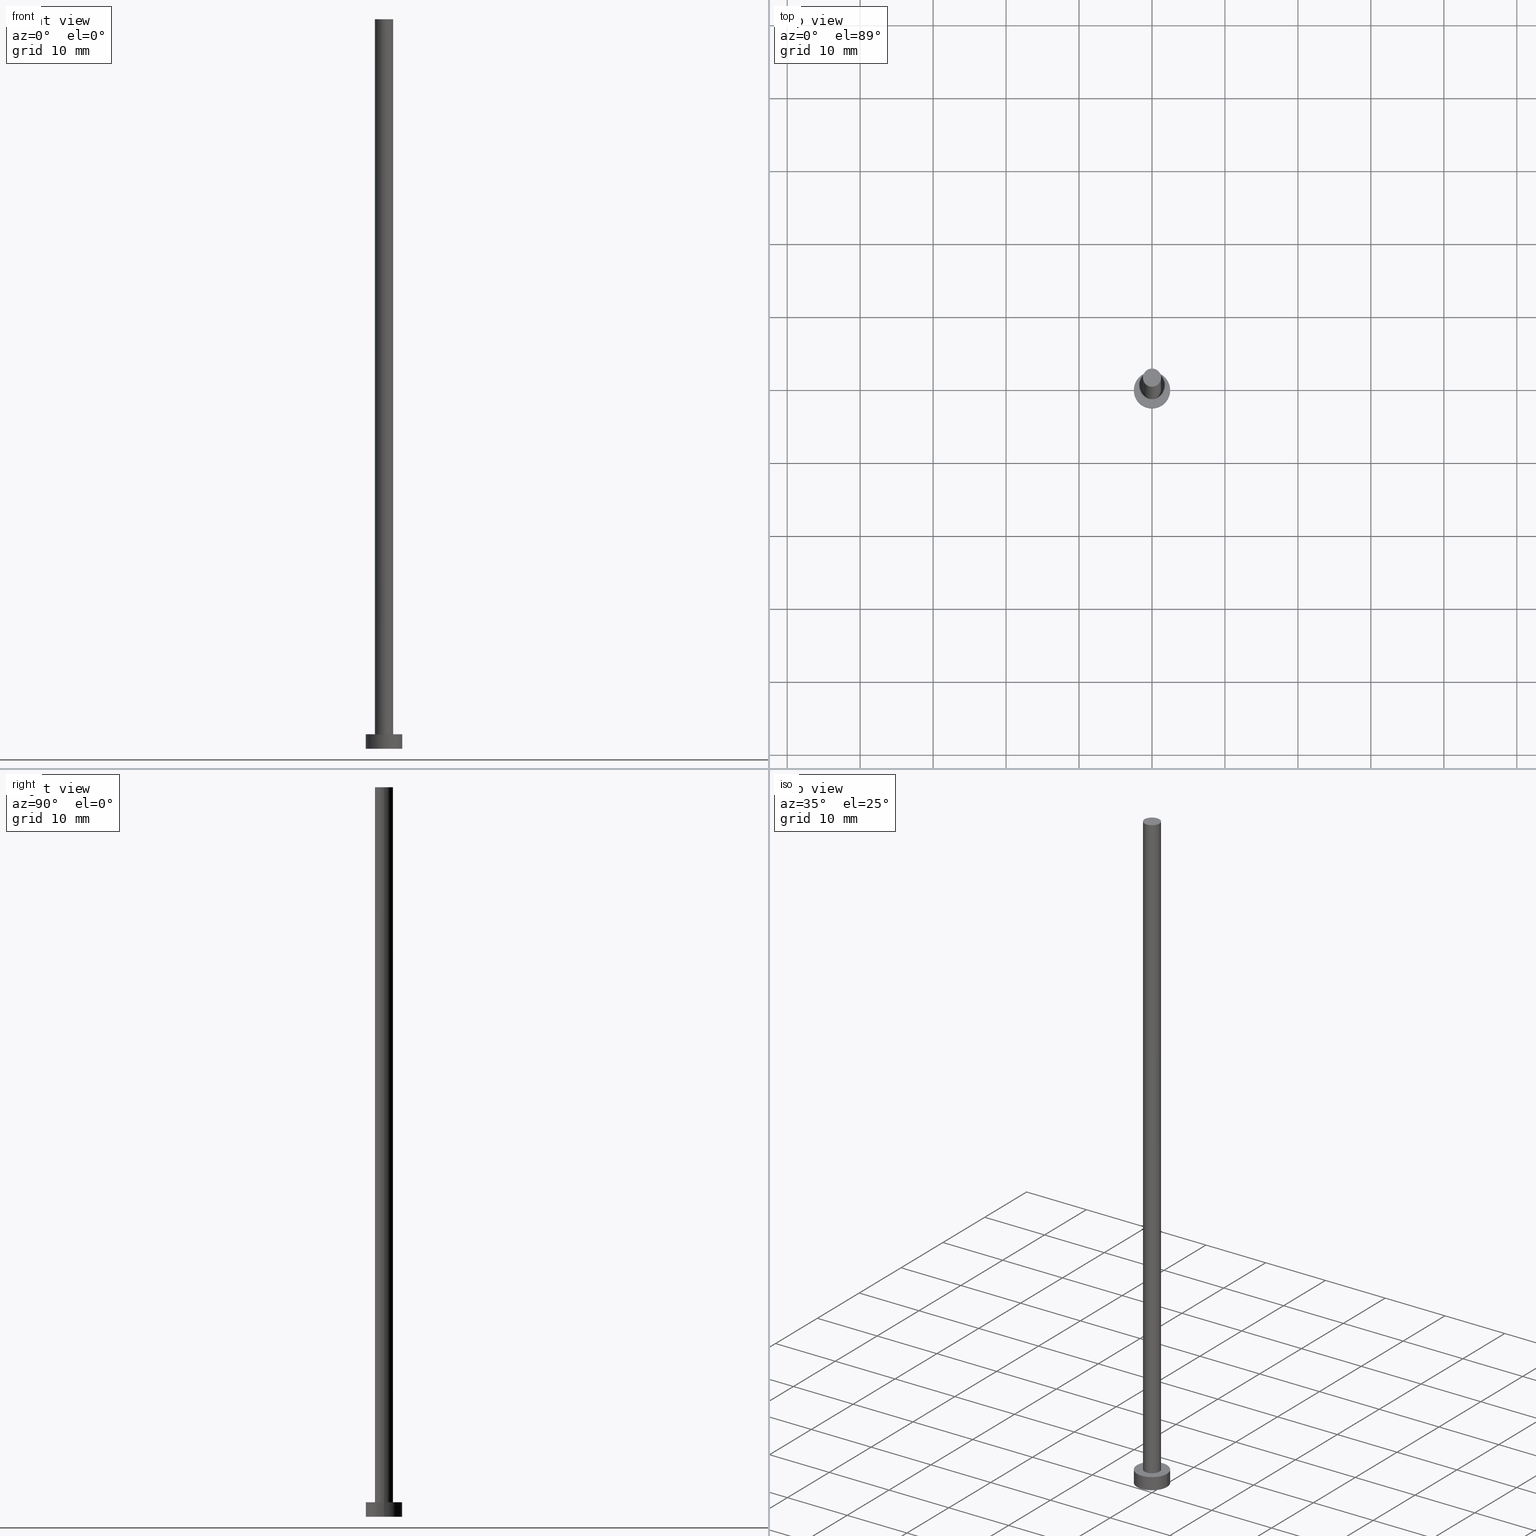
[diagram: canonical four-view strip — front | top / right | iso, engineering-drawing reading convention]
A machine part, canonical four-view strip (front | top / right | iso — engineering-drawing reading convention). The complete STEP part file that produces these views, byte-faithful:
ISO-10303-21;
HEADER;
FILE_DESCRIPTION (( 'STEP AP203' ),
    '1' );
FILE_NAME ('776c.STEP',
    '2023-02-12T12:49:47',
    ( '' ),
    ( '' ),
    'SwSTEP 2.0',
    'SolidWorks 2019',
    '' );
FILE_SCHEMA (( 'CONFIG_CONTROL_DESIGN' ));
ENDSEC;

DATA;
#1 = EDGE_CURVE ( 'NONE', #100, #57, #23, .T. ) ;
#2 = CARTESIAN_POINT ( 'NONE',  ( 1.250000000000000000, 1.530808498934191571E-16, 100.0000000000000000 ) ) ;
#3 = CARTESIAN_POINT ( 'NONE',  ( 0.000000000000000000, 0.000000000000000000, 100.0000000000000000 ) ) ;
#4 =( NAMED_UNIT ( * ) PLANE_ANGLE_UNIT ( ) SI_UNIT ( $, .RADIAN. ) );
#5 =( NAMED_UNIT ( * ) SI_UNIT ( $, .STERADIAN. ) SOLID_ANGLE_UNIT ( ) );
#6 = CARTESIAN_POINT ( 'NONE',  ( 0.000000000000000000, 0.000000000000000000, 0.000000000000000000 ) ) ;
#7 = PERSON_AND_ORGANIZATION_ROLE ( 'creator' ) ;
#8 = CALENDAR_DATE ( 2023, 12, 2 ) ;
#9 = APPROVAL_STATUS ( 'not_yet_approved' ) ;
#10 = SECURITY_CLASSIFICATION ( '', '', #187 ) ;
#11 = CALENDAR_DATE ( 2023, 12, 2 ) ;
#12 = VERTEX_POINT ( 'NONE', #129 ) ;
#13 = EDGE_CURVE ( 'NONE', #12, #118, #202, .T. ) ;
#14 = FACE_OUTER_BOUND ( 'NONE', #195, .T. ) ;
#15 = CIRCLE ( 'NONE', #95, 2.500000000000000000 ) ;
#16 = EDGE_LOOP ( 'NONE', ( #166, #172, #80, #20 ) ) ;
#17 = DIRECTION ( 'NONE',  ( -1.000000000000000000, 0.000000000000000000, 0.000000000000000000 ) ) ;
#18 = DIRECTION ( 'NONE',  ( 1.000000000000000000, 0.000000000000000000, 0.000000000000000000 ) ) ;
#19 = PRODUCT_DEFINITION_FORMATION_WITH_SPECIFIED_SOURCE ( 'LIBOVOLN�', '', #65, .NOT_KNOWN. ) ;
#20 = ORIENTED_EDGE ( 'NONE', *, *, #96, .T. ) ;
#21 = ADVANCED_FACE ( 'NONE', ( #99 ), #39, .T. ) ;
#22 = CARTESIAN_POINT ( 'NONE',  ( 0.000000000000000000, 0.000000000000000000, 100.0000000000000000 ) ) ;
#23 = CIRCLE ( 'NONE', #136, 1.250000000000000000 ) ;
#24 = FACE_OUTER_BOUND ( 'NONE', #16, .T. ) ;
#25 = CARTESIAN_POINT ( 'NONE',  ( 0.000000000000000000, 0.000000000000000000, 2.000000000000000000 ) ) ;
#26 = CYLINDRICAL_SURFACE ( 'NONE', #249, 2.500000000000000000 ) ;
#27 = DATE_TIME_ROLE ( 'creation_date' ) ;
#28 = VECTOR ( 'NONE', #140, 1000.000000000000000 ) ;
#29 = PERSON_AND_ORGANIZATION_ROLE ( 'design_supplier' ) ;
#30 = APPLICATION_PROTOCOL_DEFINITION ( 'international standard', 'config_control_design', 1994, #69 ) ;
#31 = AXIS2_PLACEMENT_3D ( 'NONE', #83, #134, #17 ) ;
#32 = ORIENTED_EDGE ( 'NONE', *, *, #94, .T. ) ;
#33 = APPROVAL_ROLE ( '' ) ;
#34 = CARTESIAN_POINT ( 'NONE',  ( -2.500000000000000000, 0.000000000000000000, 2.000000000000000000 ) ) ;
#35 = EDGE_LOOP ( 'NONE', ( #235, #169 ) ) ;
#36 = CC_DESIGN_SECURITY_CLASSIFICATION ( #10, ( #19 ) ) ;
#37 = ORIENTED_EDGE ( 'NONE', *, *, #96, .F. ) ;
#38 = MANIFOLD_SOLID_BREP ( 'P�idat vysunut�m3', #175 ) ;
#39 = CYLINDRICAL_SURFACE ( 'NONE', #70, 1.250000000000000000 ) ;
#40 = ORIENTED_EDGE ( 'NONE', *, *, #151, .T. ) ;
#41 = APPROVAL ( #49, 'NEUR�EN�' ) ;
#42 = PLANE ( 'NONE',  #208 ) ;
#43 = DIRECTION ( 'NONE',  ( -0.000000000000000000, -0.000000000000000000, -1.000000000000000000 ) ) ;
#44 = CARTESIAN_POINT ( 'NONE',  ( -1.250000000000000000, 0.000000000000000000, 100.0000000000000000 ) ) ;
#45 = CARTESIAN_POINT ( 'NONE',  ( 2.500000000000000000, 3.061616997868383141E-16, 2.000000000000000000 ) ) ;
#46 = DIRECTION ( 'NONE',  ( 1.000000000000000000, 0.000000000000000000, 0.000000000000000000 ) ) ;
#47 = PERSON_AND_ORGANIZATION ( #173, #181 ) ;
#48 = CIRCLE ( 'NONE', #238, 2.500000000000000000 ) ;
#49 = APPROVAL_STATUS ( 'not_yet_approved' ) ;
#50 = PERSON_AND_ORGANIZATION_ROLE ( 'design_owner' ) ;
#51 = APPROVAL_PERSON_ORGANIZATION ( #92, #232, #228 ) ;
#52 = DIRECTION ( 'NONE',  ( 0.000000000000000000, 0.000000000000000000, 1.000000000000000000 ) ) ;
#53 = DIRECTION ( 'NONE',  ( -0.000000000000000000, -0.000000000000000000, -1.000000000000000000 ) ) ;
#54 = DIRECTION ( 'NONE',  ( 0.000000000000000000, 0.000000000000000000, 1.000000000000000000 ) ) ;
#55 = CARTESIAN_POINT ( 'NONE',  ( 0.000000000000000000, 0.000000000000000000, 2.000000000000000000 ) ) ;
#56 = CC_DESIGN_PERSON_AND_ORGANIZATION_ASSIGNMENT ( #245, #93, ( #10 ) ) ;
#57 = VERTEX_POINT ( 'NONE', #168 ) ;
#58 = PRODUCT_DEFINITION ( 'NEZN�M�', '', #19, #101 ) ;
#59 = PLANE ( 'NONE',  #161 ) ;
#60 = DIRECTION ( 'NONE',  ( 1.000000000000000000, 0.000000000000000000, 0.000000000000000000 ) ) ;
#61 = FACE_OUTER_BOUND ( 'NONE', #35, .T. ) ;
#62 = DIRECTION ( 'NONE',  ( -0.000000000000000000, -0.000000000000000000, -1.000000000000000000 ) ) ;
#63 = DIRECTION ( 'NONE',  ( 0.000000000000000000, 0.000000000000000000, 1.000000000000000000 ) ) ;
#64 = APPROVAL_PERSON_ORGANIZATION ( #47, #41, #33 ) ;
#65 = PRODUCT ( '776c', '776c', '', ( #111 ) ) ;
#66 = EDGE_CURVE ( 'NONE', #78, #233, #150, .T. ) ;
#67 = APPLICATION_PROTOCOL_DEFINITION ( 'international standard', 'config_control_design', 1994, #106 ) ;
#68 = CC_DESIGN_DATE_AND_TIME_ASSIGNMENT ( #145, #27, ( #58 ) ) ;
#69 = APPLICATION_CONTEXT ( 'configuration controlled 3d designs of mechanical parts and assemblies' ) ;
#70 = AXIS2_PLACEMENT_3D ( 'NONE', #154, #53, #153 ) ;
#71 = CIRCLE ( 'NONE', #76, 1.250000000000000000 ) ;
#72 = DATE_TIME_ROLE ( 'classification_date' ) ;
#73 = COORDINATED_UNIVERSAL_TIME_OFFSET ( 1, 0, .AHEAD. ) ;
#74 = PRODUCT_DEFINITION_SHAPE ( 'NONE', 'NONE',  #58 ) ;
#75 = ORIENTED_EDGE ( 'NONE', *, *, #212, .F. ) ;
#76 = AXIS2_PLACEMENT_3D ( 'NONE', #120, #198, #60 ) ;
#77 = ADVANCED_FACE ( 'NONE', ( #14 ), #132, .T. ) ;
#78 = VERTEX_POINT ( 'NONE', #102 ) ;
#79 = DIRECTION ( 'NONE',  ( 1.000000000000000000, 0.000000000000000000, 0.000000000000000000 ) ) ;
#80 = ORIENTED_EDGE ( 'NONE', *, *, #66, .T. ) ;
#81 = AXIS2_PLACEMENT_3D ( 'NONE', #97, #131, #79 ) ;
#82 = LOCAL_TIME ( 13, 49, 47.00000000000000000, #184 ) ;
#83 = CARTESIAN_POINT ( 'NONE',  ( 0.000000000000000000, 0.000000000000000000, 2.000000000000000000 ) ) ;
#84 = ADVANCED_BREP_SHAPE_REPRESENTATION ( '776c', ( #38, #148 ), #188 ) ;
#85 = DIRECTION ( 'NONE',  ( 0.000000000000000000, 0.000000000000000000, 1.000000000000000000 ) ) ;
#86 = CARTESIAN_POINT ( 'NONE',  ( 0.000000000000000000, 0.000000000000000000, 0.000000000000000000 ) ) ;
#87 = DIRECTION ( 'NONE',  ( 1.000000000000000000, 0.000000000000000000, 0.000000000000000000 ) ) ;
#88 = FACE_OUTER_BOUND ( 'NONE', #251, .T. ) ;
#89 = DIRECTION ( 'NONE',  ( -1.000000000000000000, 0.000000000000000000, 0.000000000000000000 ) ) ;
#90 = DATE_AND_TIME ( #11, #82 ) ;
#91 = DATE_AND_TIME ( #247, #98 ) ;
#92 = PERSON_AND_ORGANIZATION ( #173, #181 ) ;
#93 = PERSON_AND_ORGANIZATION_ROLE ( 'classification_officer' ) ;
#94 = EDGE_CURVE ( 'NONE', #135, #78, #152, .T. ) ;
#95 = AXIS2_PLACEMENT_3D ( 'NONE', #239, #138, #87 ) ;
#96 = EDGE_CURVE ( 'NONE', #233, #231, #186, .T. ) ;
#97 = CARTESIAN_POINT ( 'NONE',  ( 0.000000000000000000, 0.000000000000000000, 0.000000000000000000 ) ) ;
#98 = LOCAL_TIME ( 13, 49, 47.00000000000000000, #73 ) ;
#99 = FACE_OUTER_BOUND ( 'NONE', #114, .T. ) ;
#100 = VERTEX_POINT ( 'NONE', #123 ) ;
#101 = DESIGN_CONTEXT ( 'detailed design', #69, 'design' ) ;
#102 = CARTESIAN_POINT ( 'NONE',  ( -2.500000000000000000, 0.000000000000000000, 2.000000000000000000 ) ) ;
#103 = EDGE_LOOP ( 'NONE', ( #117, #189 ) ) ;
#104 = LINE ( 'NONE', #45, #221 ) ;
#105 = CARTESIAN_POINT ( 'NONE',  ( 2.500000000000000000, 3.061616997868383141E-16, 2.000000000000000000 ) ) ;
#106 = APPLICATION_CONTEXT ( 'configuration controlled 3d designs of mechanical parts and assemblies' ) ;
#107 = DIRECTION ( 'NONE',  ( 1.000000000000000000, 0.000000000000000000, 0.000000000000000000 ) ) ;
#108 = VECTOR ( 'NONE', #191, 1000.000000000000000 ) ;
#109 = COORDINATED_UNIVERSAL_TIME_OFFSET ( 1, 0, .AHEAD. ) ;
#110 = CALENDAR_DATE ( 2023, 12, 2 ) ;
#111 = MECHANICAL_CONTEXT ( 'NONE', #106, 'mechanical' ) ;
#112 = APPROVAL_DATE_TIME ( #207, #232 ) ;
#113 = EDGE_LOOP ( 'NONE', ( #75, #115, #230, #192 ) ) ;
#114 = EDGE_LOOP ( 'NONE', ( #149, #209, #40, #211 ) ) ;
#115 = ORIENTED_EDGE ( 'NONE', *, *, #190, .T. ) ;
#116 = DIRECTION ( 'NONE',  ( 1.000000000000000000, 0.000000000000000000, 0.000000000000000000 ) ) ;
#117 = ORIENTED_EDGE ( 'NONE', *, *, #1, .F. ) ;
#118 = VERTEX_POINT ( 'NONE', #2 ) ;
#119 = APPROVAL ( #9, 'NEUR�EN�' ) ;
#120 = CARTESIAN_POINT ( 'NONE',  ( 0.000000000000000000, 0.000000000000000000, 2.000000000000000000 ) ) ;
#121 = CARTESIAN_POINT ( 'NONE',  ( -2.500000000000000000, 0.000000000000000000, 0.000000000000000000 ) ) ;
#122 = LOCAL_TIME ( 13, 49, 47.00000000000000000, #163 ) ;
#123 = CARTESIAN_POINT ( 'NONE',  ( -1.250000000000000000, 0.000000000000000000, 2.000000000000000000 ) ) ;
#124 = DIRECTION ( 'NONE',  ( 1.000000000000000000, 0.000000000000000000, -0.000000000000000000 ) ) ;
#125 = CC_DESIGN_PERSON_AND_ORGANIZATION_ASSIGNMENT ( #128, #50, ( #65 ) ) ;
#126 = DATE_AND_TIME ( #8, #142 ) ;
#127 = AXIS2_PLACEMENT_3D ( 'NONE', #170, #236, #116 ) ;
#128 = PERSON_AND_ORGANIZATION ( #173, #181 ) ;
#129 = CARTESIAN_POINT ( 'NONE',  ( -1.250000000000000000, 0.000000000000000000, 100.0000000000000000 ) ) ;
#130 = EDGE_CURVE ( 'NONE', #135, #231, #104, .T. ) ;
#131 = DIRECTION ( 'NONE',  ( 0.000000000000000000, 0.000000000000000000, 1.000000000000000000 ) ) ;
#132 = CYLINDRICAL_SURFACE ( 'NONE', #31, 2.500000000000000000 ) ;
#133 = AXIS2_PLACEMENT_3D ( 'NONE', #22, #43, #89 ) ;
#134 = DIRECTION ( 'NONE',  ( -0.000000000000000000, -0.000000000000000000, -1.000000000000000000 ) ) ;
#135 = VERTEX_POINT ( 'NONE', #105 ) ;
#136 = AXIS2_PLACEMENT_3D ( 'NONE', #55, #52, #18 ) ;
#137 = DIRECTION ( 'NONE',  ( 1.000000000000000000, 0.000000000000000000, -0.000000000000000000 ) ) ;
#138 = DIRECTION ( 'NONE',  ( 0.000000000000000000, 0.000000000000000000, 1.000000000000000000 ) ) ;
#139 = CC_DESIGN_PERSON_AND_ORGANIZATION_ASSIGNMENT ( #185, #29, ( #19 ) ) ;
#140 = DIRECTION ( 'NONE',  ( -0.000000000000000000, -0.000000000000000000, -1.000000000000000000 ) ) ;
#141 = DIRECTION ( 'NONE',  ( 1.000000000000000000, 0.000000000000000000, 0.000000000000000000 ) ) ;
#142 = LOCAL_TIME ( 13, 49, 47.00000000000000000, #109 ) ;
#143 = DIRECTION ( 'NONE',  ( -0.000000000000000000, -0.000000000000000000, -1.000000000000000000 ) ) ;
#144 = PERSON_AND_ORGANIZATION ( #173, #181 ) ;
#145 = DATE_AND_TIME ( #165, #122 ) ;
#146 = AXIS2_PLACEMENT_3D ( 'NONE', #194, #54, #254 ) ;
#147 = ORIENTED_EDGE ( 'NONE', *, *, #66, .F. ) ;
#148 = AXIS2_PLACEMENT_3D ( 'NONE', #6, #225, #46 ) ;
#149 = ORIENTED_EDGE ( 'NONE', *, *, #190, .F. ) ;
#150 = LINE ( 'NONE', #34, #108 ) ;
#151 = EDGE_CURVE ( 'NONE', #12, #100, #237, .T. ) ;
#152 = CIRCLE ( 'NONE', #127, 2.500000000000000000 ) ;
#153 = DIRECTION ( 'NONE',  ( -1.000000000000000000, 0.000000000000000000, 0.000000000000000000 ) ) ;
#154 = CARTESIAN_POINT ( 'NONE',  ( 0.000000000000000000, 0.000000000000000000, 100.0000000000000000 ) ) ;
#155 = DIRECTION ( 'NONE',  ( 0.000000000000000000, 0.000000000000000000, 1.000000000000000000 ) ) ;
#156 = CC_DESIGN_PERSON_AND_ORGANIZATION_ASSIGNMENT ( #144, #164, ( #58 ) ) ;
#157 = FACE_OUTER_BOUND ( 'NONE', #113, .T. ) ;
#158 = CIRCLE ( 'NONE', #203, 1.250000000000000000 ) ;
#159 = CARTESIAN_POINT ( 'NONE',  ( 0.000000000000000000, 0.000000000000000000, 2.000000000000000000 ) ) ;
#160 = DIRECTION ( 'NONE',  ( 0.000000000000000000, 0.000000000000000000, 1.000000000000000000 ) ) ;
#161 = AXIS2_PLACEMENT_3D ( 'NONE', #86, #160, #240 ) ;
#162 = CC_DESIGN_DATE_AND_TIME_ASSIGNMENT ( #90, #72, ( #10 ) ) ;
#163 = COORDINATED_UNIVERSAL_TIME_OFFSET ( 1, 0, .AHEAD. ) ;
#164 = PERSON_AND_ORGANIZATION_ROLE ( 'creator' ) ;
#165 = CALENDAR_DATE ( 2023, 12, 2 ) ;
#166 = ORIENTED_EDGE ( 'NONE', *, *, #130, .F. ) ;
#167 = ADVANCED_FACE ( 'NONE', ( #88 ), #59, .F. ) ;
#168 = CARTESIAN_POINT ( 'NONE',  ( 1.250000000000000000, 1.530808498934191571E-16, 2.000000000000000000 ) ) ;
#169 = ORIENTED_EDGE ( 'NONE', *, *, #212, .T. ) ;
#170 = CARTESIAN_POINT ( 'NONE',  ( 0.000000000000000000, 0.000000000000000000, 2.000000000000000000 ) ) ;
#171 = ADVANCED_FACE ( 'NONE', ( #24 ), #26, .T. ) ;
#172 = ORIENTED_EDGE ( 'NONE', *, *, #210, .F. ) ;
#173 = PERSON ( 'NEUR�EN�', 'NEUR�EN�', 'NEUR�EN�', ('NEUR�EN�'), ('NEUR�EN�'), ('NEUR�EN�') ) ;
#174 = DIRECTION ( 'NONE',  ( -0.000000000000000000, -0.000000000000000000, -1.000000000000000000 ) ) ;
#175 = CLOSED_SHELL ( 'NONE', ( #200, #77, #171, #248, #167, #21, #179 ) ) ;
#176 = CARTESIAN_POINT ( 'NONE',  ( 0.000000000000000000, 0.000000000000000000, 2.000000000000000000 ) ) ;
#177 = LOCAL_TIME ( 13, 49, 47.00000000000000000, #182 ) ;
#178 = LINE ( 'NONE', #196, #28 ) ;
#179 = ADVANCED_FACE ( 'NONE', ( #61 ), #222, .T. ) ;
#180 = PERSON_AND_ORGANIZATION ( #173, #181 ) ;
#181 = ORGANIZATION ( 'NEUR�EN�', 'NEUR�EN�', '' ) ;
#182 = COORDINATED_UNIVERSAL_TIME_OFFSET ( 1, 0, .AHEAD. ) ;
#183 = CC_DESIGN_PERSON_AND_ORGANIZATION_ASSIGNMENT ( #204, #7, ( #19 ) ) ;
#184 = COORDINATED_UNIVERSAL_TIME_OFFSET ( 1, 0, .AHEAD. ) ;
#185 = PERSON_AND_ORGANIZATION ( #173, #181 ) ;
#186 = CIRCLE ( 'NONE', #81, 2.500000000000000000 ) ;
#187 = SECURITY_CLASSIFICATION_LEVEL ( 'unclassified' ) ;
#188 =( GEOMETRIC_REPRESENTATION_CONTEXT ( 3 ) GLOBAL_UNCERTAINTY_ASSIGNED_CONTEXT ( ( #215 ) ) GLOBAL_UNIT_ASSIGNED_CONTEXT ( ( #197, #4, #5 ) ) REPRESENTATION_CONTEXT ( 'NONE', 'WORKASPACE' ) );
#189 = ORIENTED_EDGE ( 'NONE', *, *, #205, .F. ) ;
#190 = EDGE_CURVE ( 'NONE', #118, #57, #178, .T. ) ;
#191 = DIRECTION ( 'NONE',  ( -0.000000000000000000, -0.000000000000000000, -1.000000000000000000 ) ) ;
#192 = ORIENTED_EDGE ( 'NONE', *, *, #151, .F. ) ;
#193 = ORIENTED_EDGE ( 'NONE', *, *, #94, .F. ) ;
#194 = CARTESIAN_POINT ( 'NONE',  ( 0.000000000000000000, 0.000000000000000000, 100.0000000000000000 ) ) ;
#195 = EDGE_LOOP ( 'NONE', ( #193, #214, #252, #147 ) ) ;
#196 = CARTESIAN_POINT ( 'NONE',  ( 1.250000000000000000, 1.530808498934191571E-16, 100.0000000000000000 ) ) ;
#197 =( LENGTH_UNIT ( ) NAMED_UNIT ( * ) SI_UNIT ( .MILLI., .METRE. ) );
#198 = DIRECTION ( 'NONE',  ( 0.000000000000000000, 0.000000000000000000, 1.000000000000000000 ) ) ;
#199 = DIRECTION ( 'NONE',  ( -1.000000000000000000, 0.000000000000000000, 0.000000000000000000 ) ) ;
#200 = ADVANCED_FACE ( 'NONE', ( #157 ), #220, .T. ) ;
#201 = APPROVAL_STATUS ( 'not_yet_approved' ) ;
#202 = CIRCLE ( 'NONE', #146, 1.250000000000000000 ) ;
#203 = AXIS2_PLACEMENT_3D ( 'NONE', #3, #63, #107 ) ;
#204 = PERSON_AND_ORGANIZATION ( #173, #181 ) ;
#205 = EDGE_CURVE ( 'NONE', #57, #100, #71, .T. ) ;
#206 = ORIENTED_EDGE ( 'NONE', *, *, #210, .T. ) ;
#207 = DATE_AND_TIME ( #110, #177 ) ;
#208 = AXIS2_PLACEMENT_3D ( 'NONE', #159, #85, #137 ) ;
#209 = ORIENTED_EDGE ( 'NONE', *, *, #13, .F. ) ;
#210 = EDGE_CURVE ( 'NONE', #78, #135, #48, .T. ) ;
#211 = ORIENTED_EDGE ( 'NONE', *, *, #1, .T. ) ;
#212 = EDGE_CURVE ( 'NONE', #118, #12, #158, .T. ) ;
#213 = ORIENTED_EDGE ( 'NONE', *, *, #223, .F. ) ;
#214 = ORIENTED_EDGE ( 'NONE', *, *, #130, .T. ) ;
#215 = UNCERTAINTY_MEASURE_WITH_UNIT (LENGTH_MEASURE( 1.000000000000000082E-05 ), #197, 'distance_accuracy_value', 'NONE');
#216 = AXIS2_PLACEMENT_3D ( 'NONE', #217, #241, #124 ) ;
#217 = CARTESIAN_POINT ( 'NONE',  ( 0.000000000000000000, 0.000000000000000000, 100.0000000000000000 ) ) ;
#218 = APPROVAL_PERSON_ORGANIZATION ( #180, #119, #243 ) ;
#219 = FACE_BOUND ( 'NONE', #103, .T. ) ;
#220 = CYLINDRICAL_SURFACE ( 'NONE', #133, 1.250000000000000000 ) ;
#221 = VECTOR ( 'NONE', #143, 1000.000000000000000 ) ;
#222 = PLANE ( 'NONE',  #216 ) ;
#223 = EDGE_CURVE ( 'NONE', #231, #233, #15, .T. ) ;
#224 = FACE_OUTER_BOUND ( 'NONE', #250, .T. ) ;
#225 = DIRECTION ( 'NONE',  ( 0.000000000000000000, 0.000000000000000000, 1.000000000000000000 ) ) ;
#226 = APPROVAL_DATE_TIME ( #91, #119 ) ;
#227 = CC_DESIGN_APPROVAL ( #232, ( #19 ) ) ;
#228 = APPROVAL_ROLE ( '' ) ;
#229 = APPROVAL_DATE_TIME ( #126, #41 ) ;
#230 = ORIENTED_EDGE ( 'NONE', *, *, #205, .T. ) ;
#231 = VERTEX_POINT ( 'NONE', #255 ) ;
#232 = APPROVAL ( #201, 'NEUR�EN�' ) ;
#233 = VERTEX_POINT ( 'NONE', #121 ) ;
#234 = CC_DESIGN_APPROVAL ( #41, ( #58 ) ) ;
#235 = ORIENTED_EDGE ( 'NONE', *, *, #13, .T. ) ;
#236 = DIRECTION ( 'NONE',  ( 0.000000000000000000, 0.000000000000000000, 1.000000000000000000 ) ) ;
#237 = LINE ( 'NONE', #44, #253 ) ;
#238 = AXIS2_PLACEMENT_3D ( 'NONE', #25, #155, #141 ) ;
#239 = CARTESIAN_POINT ( 'NONE',  ( 0.000000000000000000, 0.000000000000000000, 0.000000000000000000 ) ) ;
#240 = DIRECTION ( 'NONE',  ( 1.000000000000000000, 0.000000000000000000, -0.000000000000000000 ) ) ;
#241 = DIRECTION ( 'NONE',  ( 0.000000000000000000, 0.000000000000000000, 1.000000000000000000 ) ) ;
#242 = CC_DESIGN_APPROVAL ( #119, ( #10 ) ) ;
#243 = APPROVAL_ROLE ( '' ) ;
#244 = PRODUCT_RELATED_PRODUCT_CATEGORY ( 'detail', '', ( #65 ) ) ;
#245 = PERSON_AND_ORGANIZATION ( #173, #181 ) ;
#246 = SHAPE_DEFINITION_REPRESENTATION ( #74, #84 ) ;
#247 = CALENDAR_DATE ( 2023, 12, 2 ) ;
#248 = ADVANCED_FACE ( 'NONE', ( #219, #224 ), #42, .T. ) ;
#249 = AXIS2_PLACEMENT_3D ( 'NONE', #176, #62, #199 ) ;
#250 = EDGE_LOOP ( 'NONE', ( #206, #32 ) ) ;
#251 = EDGE_LOOP ( 'NONE', ( #37, #213 ) ) ;
#252 = ORIENTED_EDGE ( 'NONE', *, *, #223, .T. ) ;
#253 = VECTOR ( 'NONE', #174, 1000.000000000000000 ) ;
#254 = DIRECTION ( 'NONE',  ( 1.000000000000000000, 0.000000000000000000, 0.000000000000000000 ) ) ;
#255 = CARTESIAN_POINT ( 'NONE',  ( 2.500000000000000000, 3.061616997868383141E-16, 0.000000000000000000 ) ) ;
ENDSEC;
END-ISO-10303-21;
